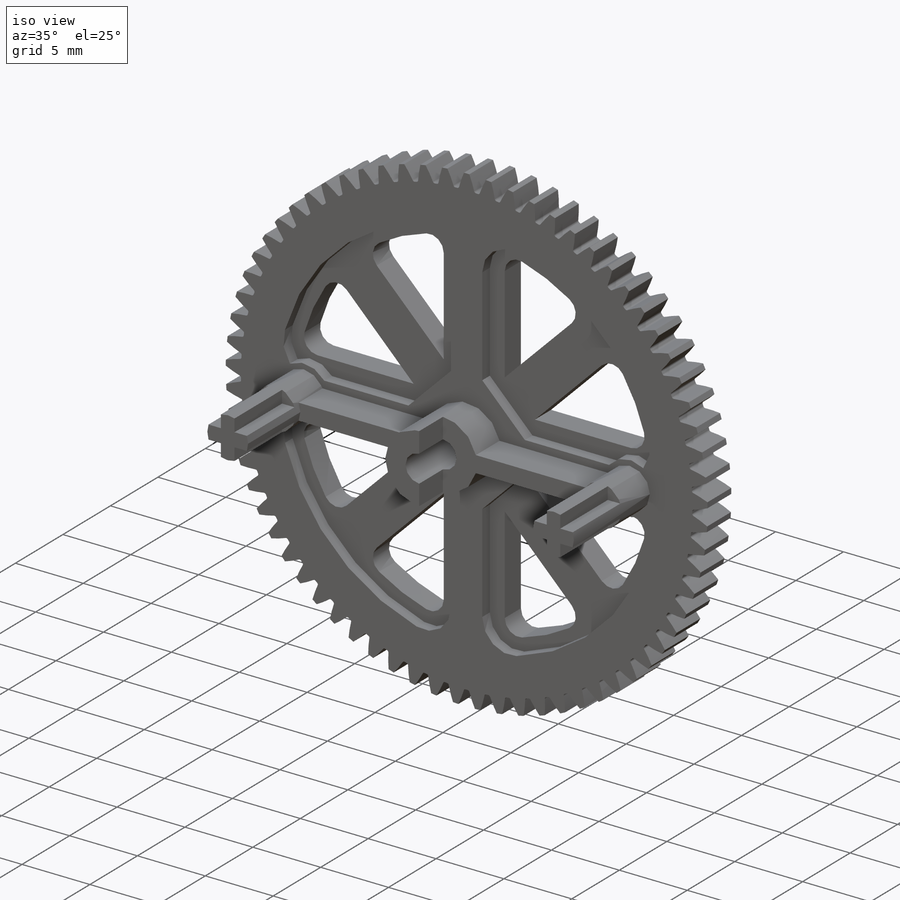
[diagram: iso view]
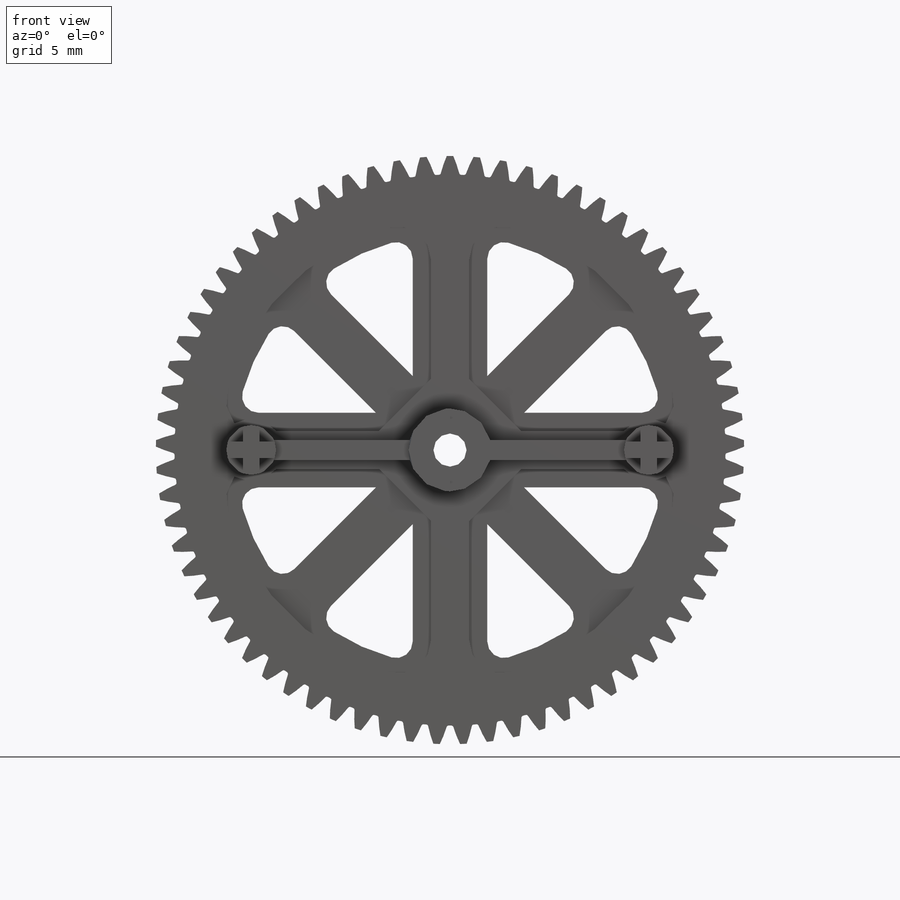
[diagram: front view]
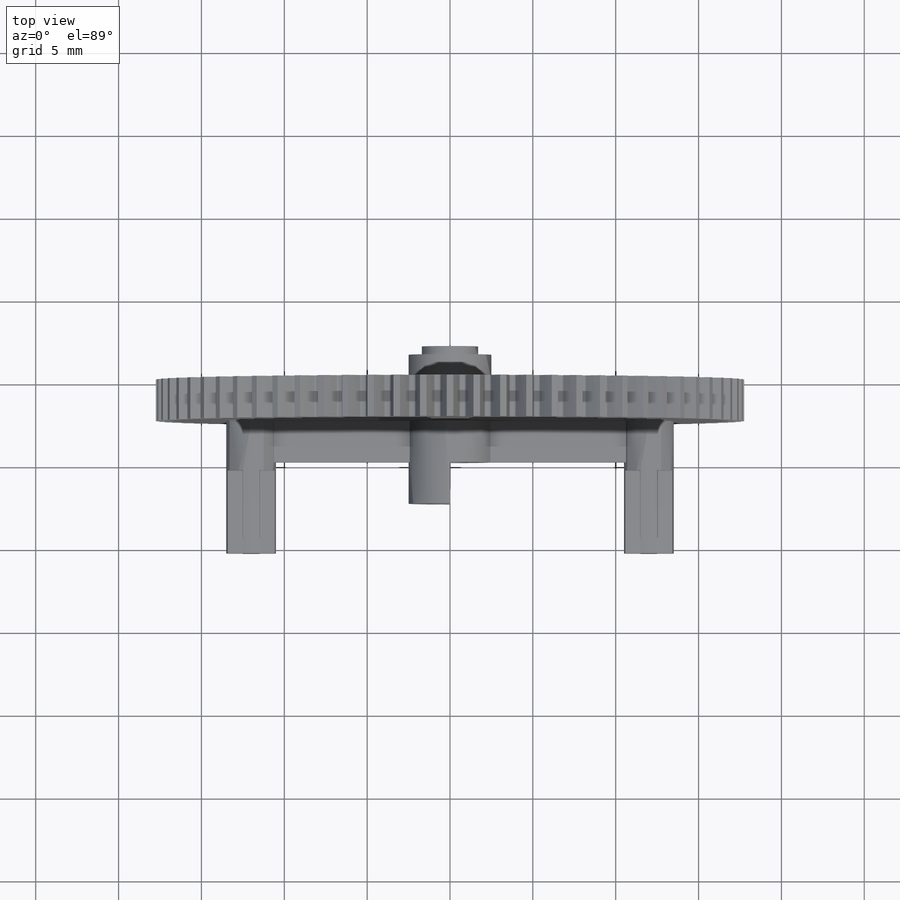
[diagram: top view]
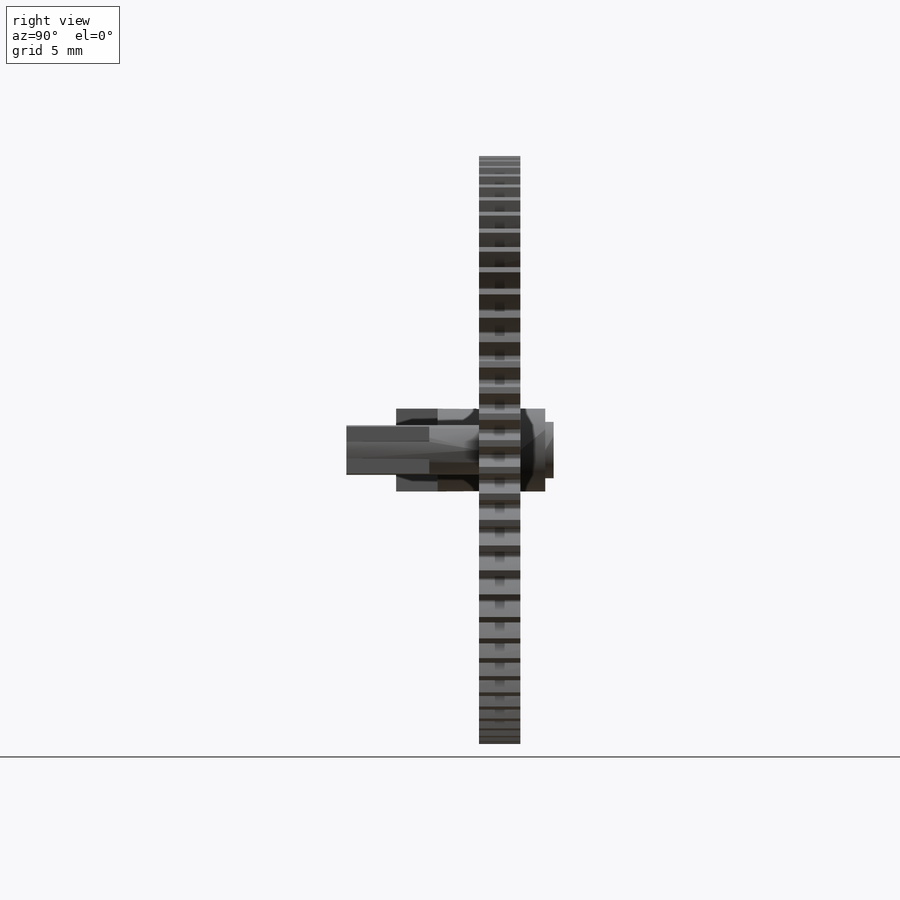
[diagram: right view]
SOLIDWORKS PART (.sldprt)
format: sldprt  version: not decoded by parser v0  size: 1,089,024 bytes
history: native  units: mm
features: sketch x13, plane x6, extrude x6, cut_extrude x5, pattern_circular x3, mirror x3, fillet x2, material x1 (+8 scaffold rows collapsed)
feature tree (47):
  scaffold x8  (default folders/planes/origin — collapsed)
  material  "PA Type 6"
  plane  "Plan1"
  plane  "Plan2"
  plane  "Plan3"
  sketch  "Esquisse1"  dims[Dp=33.25mm]
  sketch  "Esquisse2"  dims[c1.Db=32.4193mm c1.Dn=34.5mm c1.Dt=35.5mm c1.m=0.5mm c1.D2=7.0mm c1.ap=20.0deg c1.D1=~9.395278mm c2.D1=20.854deg c2.D2=~9.395278mm c3.D2=~24.138828deg c3.D1=8.0mm c3.Tn=~0.853707deg c4.D2=8.0mm c4.Tt=~1.518338deg c4.D3=9.5mm c4.Ts=~1.300614deg]
  extrude  "Base-Extrusion"  Depth=2.5mm
  plane  "Plan median"  Offset=1.25mm
  extrude  "Boss.-Extru.1"  Depth=2.5mm
  fillet  "Congé1"  Radius=0.125mm
  pattern_circular  "Répétition circulaire1"  Count=69 Angle=360deg
  sketch  "Esquisse5"  dims[D1=5.0mm]
  extrude  "Extrusion1"  Depth=1.5mm
  sketch  "Esquisse6"  dims[D1=3.4mm]
  extrude  "Extrusion2"  Depth=0.5mm
  sketch  "Esquisse7"  dims[c1.D3=13.0mm c1.D5=1.0mm c1.D6=13.0mm c1.D10=1.0mm c1.D1=~5.902883mm c2.D1=45.0deg c2.D2=2.25mm c2.D4=5.0mm c2.D7=2.25mm c2.D8=~7.325102mm c3.D8=45.0deg c3.D9=5.0mm]
  cut_extrude  "Extrusion3"  [1 undecoded]
  pattern_circular  "Répétition circulaire3"  Count=4 Angle=90deg
  sketch  "Esquisse9"  dims[D1=3.0mm D2=12.0mm]
  extrude  "Extrusion4"  Depth=8mm
  sketch  "Esquisse10"  dims[D1=0.5mm D2=0.5mm]
  cut_extrude  "Extrusion5"  Depth=5mm
  pattern_circular  "Répétition circulaire4"  Count=4 Angle=90deg
  sketch  "Esquisse11"  dims[D1=5.0mm]
  extrude  "Extrusion6"  Depth=5mm
  sketch  "Esquisse13"  dims[D1=1.2mm]
  mirror  "Symétrie2"
  sketch  "Esquisse14"  dims[c1.D1=14.2mm c1.D5=3.8mm c2.D1=2.0mm c2.D2=1.15mm c2.D3=1.15mm c2.D4=~2.341365mm c3.D4=~216.742536deg c4.D4=~2.341365mm c5.D4=45.0deg]
  cut_extrude  "Extrusion7"  Depth=0.8mm
  mirror  "Symétrie3"
  mirror  "Symétrie4"
  sketch  "Esquisse16"  dims[D1=2.0mm]
  cut_extrude  "Extrusion8"  [1 undecoded]
  sketch  "Esquisse17"
  cut_extrude  "Extrusion9"  [1 undecoded]
  sketch  "Esquisse4"
  fillet  "Cylindre primitif"  [1 undecoded]
  plane  "Plan médian dent"
  plane  "Planmédian creux"
decode coverage: 23 of 32 modeling features carry decoded parameters
note: ~ marks probable driven/reference dimensions
note: 4 parameter values undecoded
summary: no parameter record found for 4 features
note: suppression state not decoded; provenance and decode notes live in map.json
